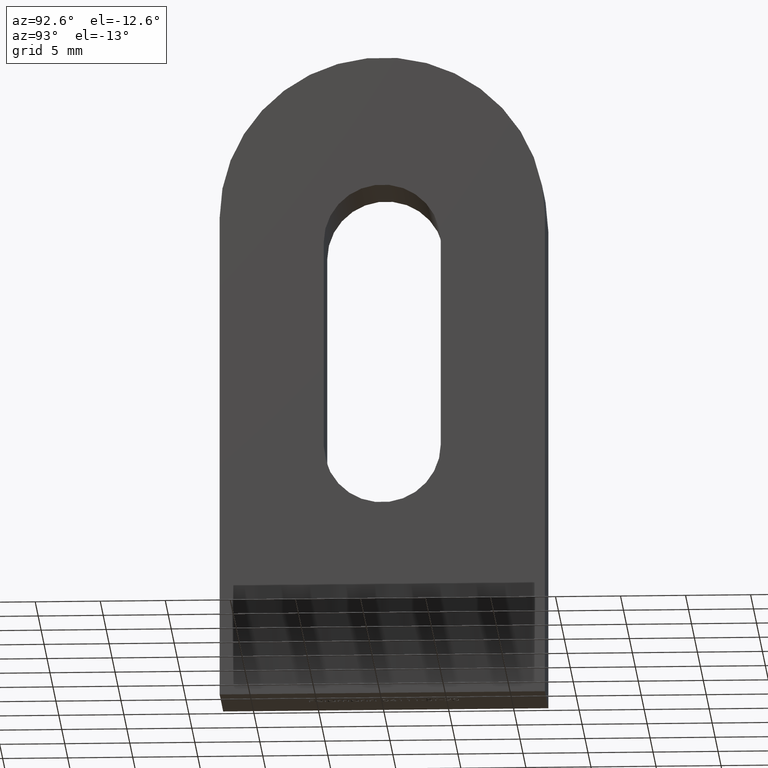
[diagram: clean part render]
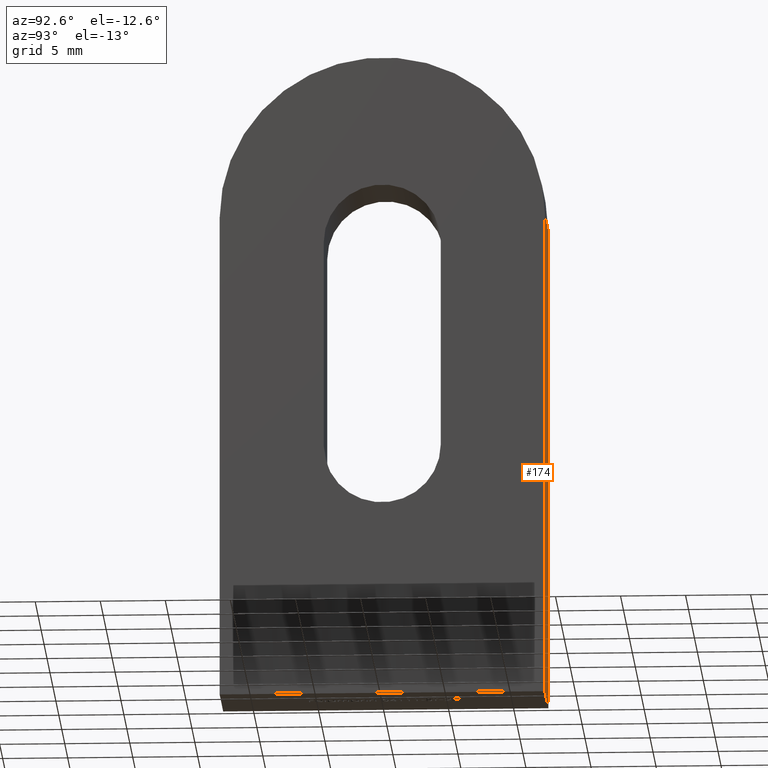
[diagram: same view with one face highlighted and labeled with its STEP entity id]
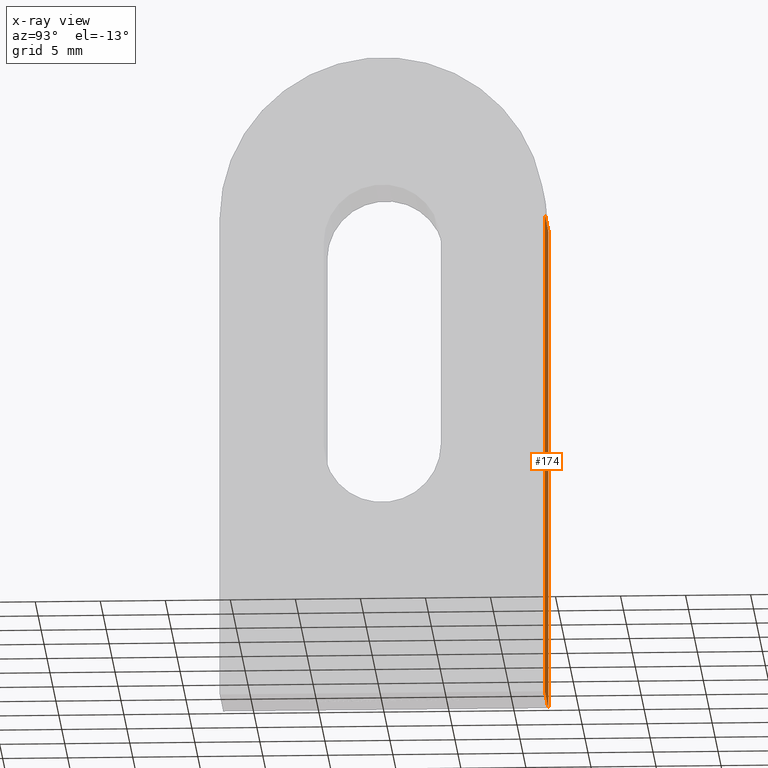
[diagram: x-ray of the same camera — body ghosted, the highlighted face saturated]
A machine part, auxiliary view. The second image highlights one B-rep face of the part: STEP entity #174.
The next image is the same camera in x-ray: the body ghosted, the highlighted face saturated — about 0% of this face is hidden behind the body in this view.
In plain terms, the highlighted planar face has unit normal (0, 1, -0).
Its self-contained STEP definition (entity closure, byte-faithful):
#174 = ADVANCED_FACE ( 'NONE', ( #11612 ), #6930, .T. ) ;
#843 = ORIENTED_EDGE ( 'NONE', *, *, #1213, .T. ) ;
#955 = VERTEX_POINT ( 'NONE', #3706 ) ;
#1102 = ORIENTED_EDGE ( 'NONE', *, *, #8186, .F. ) ;
#1197 = VECTOR ( 'NONE', #2616, 1000.000000000000000 ) ;
#1213 = EDGE_CURVE ( 'NONE', #7567, #955, #7112, .T. ) ;
#1352 = DIRECTION ( 'NONE',  ( 0.000000000000000000, -4.625929269271485791E-17, -1.000000000000000000 ) ) ;
#2261 = CARTESIAN_POINT ( 'NONE',  ( 3.000000000000000000, 12.50000000000000178, 37.50000000000000000 ) ) ;
#2327 = EDGE_CURVE ( 'NONE', #8131, #11522, #5691, .T. ) ;
#2540 = CARTESIAN_POINT ( 'NONE',  ( 3.000000000000000000, 12.50000000000000000, -3.367778697655221307E-15 ) ) ;
#2616 = DIRECTION ( 'NONE',  ( -1.000000000000000000, -0.000000000000000000, -0.000000000000000000 ) ) ;
#2958 = LINE ( 'NONE', #6729, #6755 ) ;
#3343 = DIRECTION ( 'NONE',  ( 0.000000000000000000, 4.625929269271485174E-17, 1.000000000000000000 ) ) ;
#3382 = DIRECTION ( 'NONE',  ( 0.000000000000000000, 1.000000000000000000, -4.625929269271485174E-17 ) ) ;
#3642 = CARTESIAN_POINT ( 'NONE',  ( -3.000000000000000000, 12.50000000000000178, 37.50000000000000000 ) ) ;
#3706 = CARTESIAN_POINT ( 'NONE',  ( -3.000000000000000000, 12.50000000000000000, -3.367778697655221307E-15 ) ) ;
#3771 = DIRECTION ( 'NONE',  ( 0.000000000000000000, -4.625929269271485791E-17, -1.000000000000000000 ) ) ;
#4450 = ORIENTED_EDGE ( 'NONE', *, *, #11205, .T. ) ;
#5666 = CARTESIAN_POINT ( 'NONE',  ( 3.000000000000000000, 12.50000000000000178, 37.50000000000000000 ) ) ;
#5691 = LINE ( 'NONE', #5666, #9596 ) ;
#6729 = CARTESIAN_POINT ( 'NONE',  ( -3.000000000000000000, 12.50000000000000178, 37.50000000000000000 ) ) ;
#6755 = VECTOR ( 'NONE', #1352, 1000.000000000000000 ) ;
#6846 = DIRECTION ( 'NONE',  ( -1.000000000000000000, -0.000000000000000000, -0.000000000000000000 ) ) ;
#6930 = PLANE ( 'NONE',  #8427 ) ;
#7112 = LINE ( 'NONE', #2540, #1197 ) ;
#7242 = CARTESIAN_POINT ( 'NONE',  ( 3.000000000000000000, 12.50000000000000000, -3.367778697655221307E-15 ) ) ;
#7293 = LINE ( 'NONE', #9127, #10955 ) ;
#7567 = VERTEX_POINT ( 'NONE', #7242 ) ;
#8131 = VERTEX_POINT ( 'NONE', #2261 ) ;
#8186 = EDGE_CURVE ( 'NONE', #11522, #955, #2958, .T. ) ;
#8427 = AXIS2_PLACEMENT_3D ( 'NONE', #9601, #3382, #3343 ) ;
#8537 = ORIENTED_EDGE ( 'NONE', *, *, #2327, .F. ) ;
#9127 = CARTESIAN_POINT ( 'NONE',  ( 3.000000000000000000, 12.50000000000000178, 37.50000000000000000 ) ) ;
#9596 = VECTOR ( 'NONE', #6846, 1000.000000000000000 ) ;
#9601 = CARTESIAN_POINT ( 'NONE',  ( 3.000000000000000000, 12.50000000000000178, 37.50000000000000000 ) ) ;
#10063 = EDGE_LOOP ( 'NONE', ( #1102, #8537, #4450, #843 ) ) ;
#10955 = VECTOR ( 'NONE', #3771, 1000.000000000000000 ) ;
#11205 = EDGE_CURVE ( 'NONE', #8131, #7567, #7293, .T. ) ;
#11522 = VERTEX_POINT ( 'NONE', #3642 ) ;
#11612 = FACE_OUTER_BOUND ( 'NONE', #10063, .T. ) ;